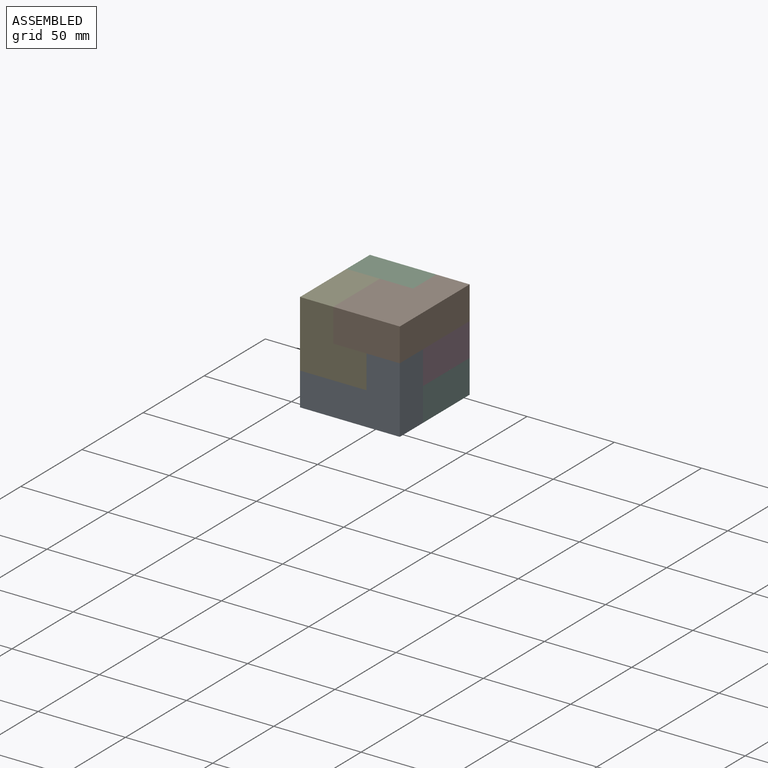
[diagram: assembled view]
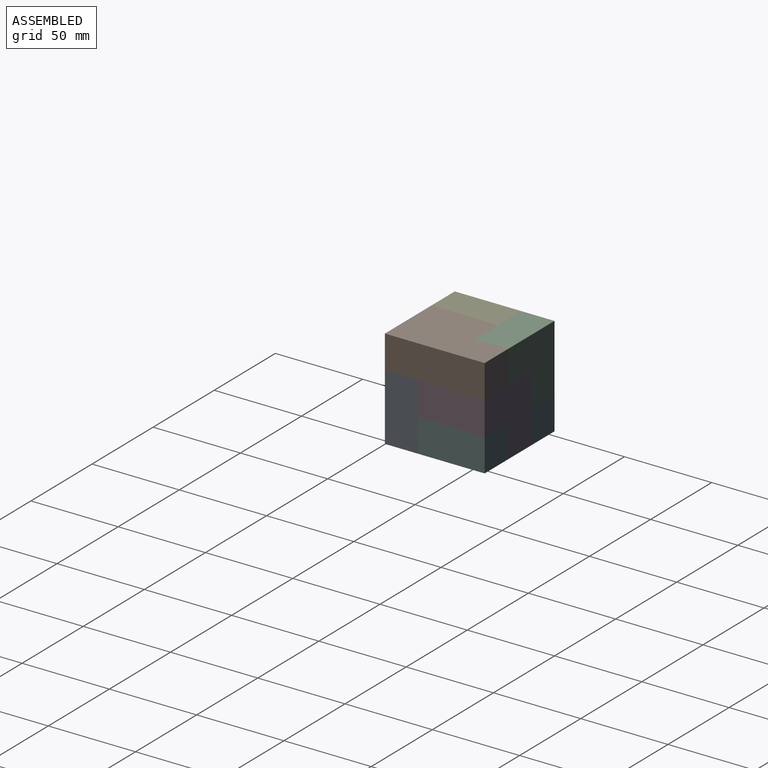
[diagram: assembled view, second angle]
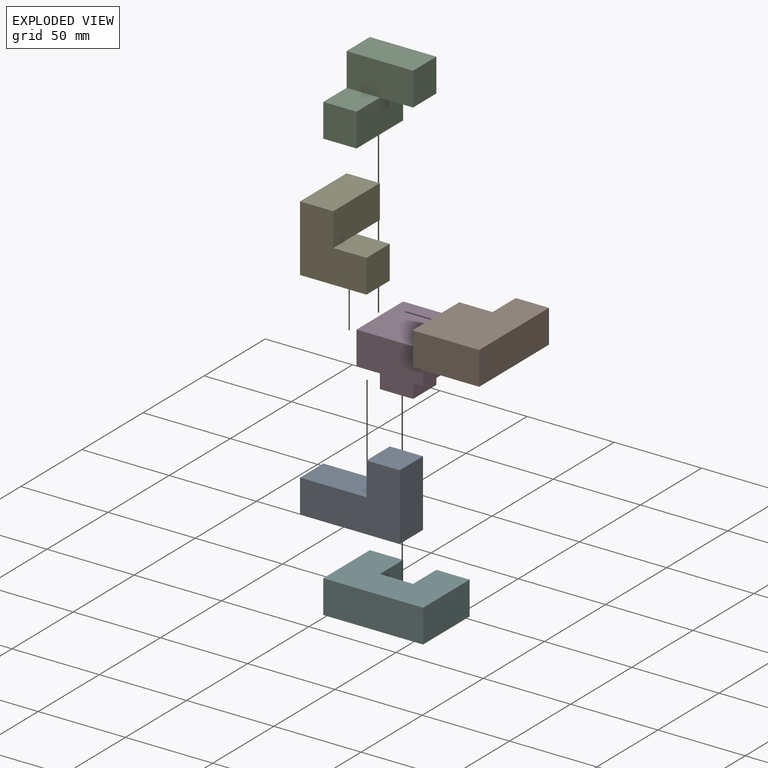
[diagram: exploded view]
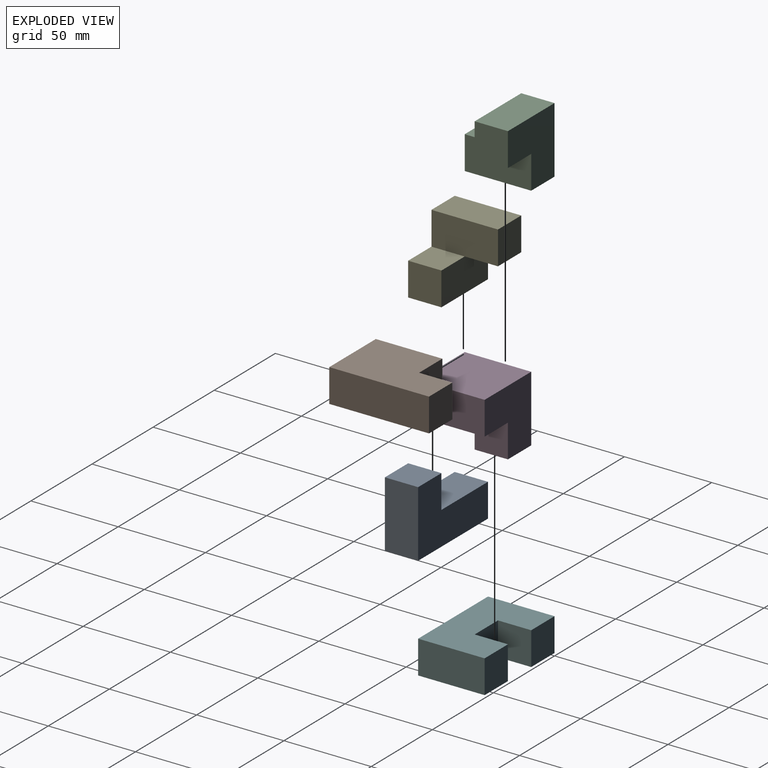
[diagram: exploded view, second angle]
ASSEMBLY  parts=6 mates=18
PART A: 8 faces, bbox 57.2x38.1x19.1 mm
  f0: plane 38.1x19.05mm, normal (-1,0,0), area 725.8mm2, adj f1,f5,f6,f7
  f1: plane 57.15x19.05mm, normal (0,-1,0), area 1088.7mm2, adj f0,f2,f6,f7
  f2: plane 19.05x19.05mm, normal (1,0,0), area 362.9mm2, adj f1,f3,f6,f7
  f3: plane 38.1x19.05mm, normal (0,1,0), area 725.8mm2, adj f2,f4,f6,f7
  f4: plane 19.05x19.05mm, normal (1,0,0), area 362.9mm2, adj f3,f5,f6,f7
  f5: plane 19.05x19.05mm, normal (0,1,0), area 362.9mm2, adj f0,f4,f6,f7
  f6: plane 57.15x38.1mm, normal (0,0,1), area 1451.6mm2, adj f0,f1,f2,f3,f4,f5
  f7: plane 57.15x38.1mm, normal (0,0,-1), area 1451.6mm2, adj f0,f1,f2,f3,f4,f5
PART B: 8 faces, bbox 57.2x38.1x19.1 mm
  f0: plane 38.1x19.05mm, normal (0,1,0), area 725.8mm2, adj f1,f5,f6,f7
  f1: plane 38.1x19.05mm, normal (-1,0,0), area 725.8mm2, adj f0,f2,f6,f7
  f2: plane 57.15x19.05mm, normal (0,-1,0), area 1088.7mm2, adj f1,f3,f6,f7
  f3: plane 19.05x19.05mm, normal (1,0,0), area 362.9mm2, adj f2,f4,f6,f7
  f4: plane 19.05x19.05mm, normal (0,1,0), area 362.9mm2, adj f3,f5,f6,f7
  f5: plane 19.05x19.05mm, normal (1,0,0), area 362.9mm2, adj f0,f4,f6,f7
  f6: plane 57.15x38.1mm, normal (0,0,1), area 1814.5mm2, adj f0,f1,f2,f3,f4,f5
  f7: plane 57.15x38.1mm, normal (0,0,-1), area 1814.5mm2, adj f0,f1,f2,f3,f4,f5
PART C: 10 faces, bbox 38.1x38.1x38.1 mm
  f0: plane 38.1x19.05mm, normal (-1,0,0), area 725.8mm2, adj f1,f5,f7,f9
  f1: plane 38.1x19.05mm, normal (0,-1,0), area 725.8mm2, adj f0,f2,f7,f8,f9
  f2: plane 19.05x19.05mm, normal (-1,0,0), area 362.9mm2, adj f1,f3,f6,f7
  f3: plane 19.05x19.05mm, normal (0,-1,0), area 362.9mm2, adj f2,f4,f6,f7
  f4: plane 38.1x19.05mm, normal (1,0,0), area 725.8mm2, adj f3,f5,f6,f7
  f5: plane 38.1x38.1mm, normal (0,1,0), area 1088.7mm2, adj f0,f4,f6,f7,f8,f9
  f6: plane 38.1x19.05mm, normal (0,0,1), area 725.8mm2, adj f2,f3,f4,f5,f8
  f7: plane 38.1x38.1mm, normal (0,0,-1), area 1088.7mm2, adj f0,f1,f2,f3,f4,f5
  f8: plane 19.05x19.05mm, normal (1,0,0), area 362.9mm2, adj f1,f5,f6,f9
  f9: plane 19.05x19.05mm, normal (0,0,1), area 362.9mm2, adj f0,f1,f5,f8
PART D: 9 faces, bbox 38.1x38.1x38.1 mm
  f0: plane 38.1x38.1mm, normal (0,0,1), area 1088.7mm2, adj f1,f2,f3,f4,f6,f7
  f1: plane 38.1x38.1mm, normal (-1,0,0), area 1088.7mm2, adj f0,f2,f4,f5,f6,f8
  f2: plane 38.1x19.05mm, normal (0,-1,0), area 725.8mm2, adj f0,f1,f3,f5
  f3: plane 38.1x19.05mm, normal (1,0,0), area 725.8mm2, adj f0,f2,f4,f5
  f4: plane 38.1x38.1mm, normal (0,1,0), area 1088.7mm2, adj f0,f1,f3,f5,f7,f8
  f5: plane 38.1x38.1mm, normal (0,0,-1), area 1451.6mm2, adj f1,f2,f3,f4
  f6: plane 19.05x19.05mm, normal (0,-1,0), area 362.9mm2, adj f0,f1,f7,f8
  f7: plane 19.05x19.05mm, normal (1,0,0), area 362.9mm2, adj f0,f4,f6,f8
  f8: plane 19.05x19.05mm, normal (0,0,1), area 362.9mm2, adj f1,f4,f6,f7
PART E: same geometry as C
PART F: 10 faces, bbox 57.2x38.1x19.1 mm
  f0: plane 19.05x19.05mm, normal (0,1,0), area 362.9mm2, adj f1,f7,f8,f9
  f1: plane 38.1x19.05mm, normal (-1,0,0), area 725.8mm2, adj f0,f2,f8,f9
  f2: plane 57.15x19.05mm, normal (0,-1,0), area 1088.7mm2, adj f1,f3,f8,f9
  f3: plane 38.1x19.05mm, normal (1,0,0), area 725.8mm2, adj f2,f4,f8,f9
  f4: plane 19.05x19.05mm, normal (0,1,0), area 362.9mm2, adj f3,f5,f8,f9
  f5: plane 19.05x19.05mm, normal (-1,0,0), area 362.9mm2, adj f4,f6,f8,f9
  f6: plane 19.05x19.05mm, normal (0,1,0), area 362.9mm2, adj f5,f7,f8,f9
  f7: plane 19.05x19.05mm, normal (1,0,0), area 362.9mm2, adj f0,f6,f8,f9
  f8: plane 57.15x38.1mm, normal (0,0,1), area 1814.5mm2, adj f0,f1,f2,f3,f4,f5,f6,f7
  f9: plane 57.15x38.1mm, normal (0,0,-1), area 1814.5mm2, adj f0,f1,f2,f3,f4,f5,f6,f7
PLACE A rot(axis=(0,-0.71,-0.71),180deg) t=(57.15,-57.15,0)mm
PLACE B rot(axis=(0,0,1),90deg) t=(19.05,-57.15,38.1)mm
PLACE C rot(axis=(0,1,0),90deg) t=(0,-19.05,57.15)mm
PLACE D rot(axis=(-0.71,0.71,0),180deg) t=(57.15,0,38.1)mm
PLACE E rot(axis=(0.71,0,0.71),180deg) t=(0,-38.1,19.05)mm
PLACE F at identity fixed
MATE planar D.f1 <-> B.f3  axis (0,1,0) through (34.92,0,22.23)mm
MATE planar E.f5 <-> A.f7  axis (0,-1,0) through (15.88,-57.15,34.93)mm
MATE planar F.f8 <-> D.f0  axis (0,0,1) through (57.15,-19.05,19.05)mm
MATE planar E.f7 <-> C.f7  axis (-1,0,0) through (0,-41.27,41.28)mm
MATE planar B.f6 <-> E.f4  axis (0,0,1) through (40,-32.38,57.15)mm
MATE planar C.f2 <-> D.f5  axis (0,0,1) through (9.53,-28.58,38.1)mm
MATE planar A.f0 <-> F.f3  axis (1,0,0) through (57.15,-47.62,19.05)mm
MATE planar A.f6 <-> F.f2  axis (0,1,0) through (0,-38.1,9.53)mm
MATE planar D.f0 <-> F.f8  axis (0,0,-1) through (41.27,-22.22,19.05)mm
MATE planar D.f2 <-> F.f3  axis (1,0,0) through (57.15,-19.05,28.58)mm
MATE planar C.f7 <-> F.f1  axis (-1,0,0) through (0,-15.88,34.92)mm
MATE planar D.f3 <-> C.f3  axis (0,-1,0) through (19.05,-38.1,28.58)mm
MATE planar C.f0 <-> E.f4  axis (0,0,1) through (19.05,-9.53,57.15)mm
MATE planar C.f5 <-> F.f0  axis (0,1,0) through (0,0,38.1)mm
MATE planar B.f2 <-> A.f0  axis (1,0,0) through (57.15,-28.57,47.63)mm
MATE planar C.f3 <-> D.f3  axis (0,-1,0) through (9.53,-38.1,28.57)mm
MATE planar F.f8 <-> A.f3  axis (0,0,1) through (28.57,-20.96,19.05)mm
MATE planar D.f3 <-> A.f6  axis (0,-1,0) through (38.1,-38.1,28.58)mm
